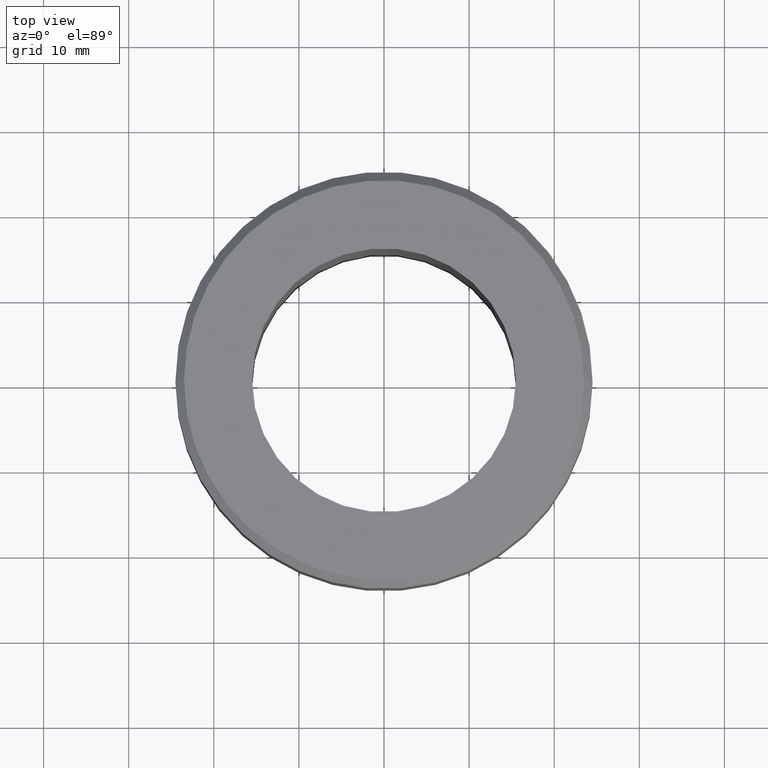
[diagram: clean part render]
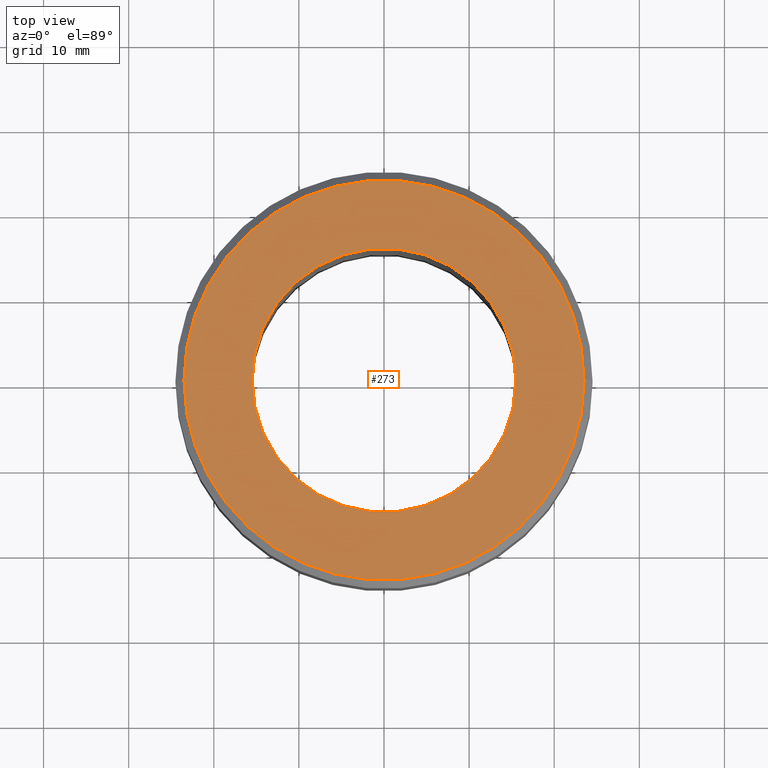
[diagram: same view with one face highlighted and labeled with its STEP entity id]
A machine part, top view. The second image highlights one B-rep face of the part: STEP entity #273.
In plain terms, the highlighted planar face has unit normal (0, -0, 1).
Its self-contained STEP definition (entity closure, byte-faithful):
#5 = CARTESIAN_POINT ( 'NONE',  ( 0.000000000000000000, 0.000000000000000000, 0.000000000000000000 ) ) ;
#46 = ORIENTED_EDGE ( 'NONE', *, *, #323, .T. ) ;
#67 = CARTESIAN_POINT ( 'NONE',  ( -23.50000000000000711, 0.000000000000000000, 0.000000000000000000 ) ) ;
#94 = FACE_BOUND ( 'NONE', #520, .T. ) ;
#98 = DIRECTION ( 'NONE',  ( 0.000000000000000000, -0.000000000000000000, 1.000000000000000000 ) ) ;
#105 = EDGE_CURVE ( 'NONE', #427, #154, #485, .T. ) ;
#124 = EDGE_CURVE ( 'NONE', #158, #391, #258, .T. ) ;
#127 = AXIS2_PLACEMENT_3D ( 'NONE', #181, #98, #509 ) ;
#129 = CARTESIAN_POINT ( 'NONE',  ( 23.50000000000000711, 2.939152317953648289E-15, 0.000000000000000000 ) ) ;
#134 = DIRECTION ( 'NONE',  ( -0.000000000000000000, -0.000000000000000000, 1.000000000000000000 ) ) ;
#154 = VERTEX_POINT ( 'NONE', #453 ) ;
#158 = VERTEX_POINT ( 'NONE', #129 ) ;
#172 = DIRECTION ( 'NONE',  ( 1.000000000000000000, 0.000000000000000000, 0.000000000000000000 ) ) ;
#173 = EDGE_LOOP ( 'NONE', ( #46, #272 ) ) ;
#181 = CARTESIAN_POINT ( 'NONE',  ( 0.000000000000000000, 0.000000000000000000, 0.000000000000000000 ) ) ;
#186 = CIRCLE ( 'NONE', #483, 23.50000000000000711 ) ;
#187 = FACE_OUTER_BOUND ( 'NONE', #173, .T. ) ;
#192 = DIRECTION ( 'NONE',  ( -0.000000000000000000, -0.000000000000000000, 1.000000000000000000 ) ) ;
#258 = CIRCLE ( 'NONE', #389, 23.50000000000000711 ) ;
#272 = ORIENTED_EDGE ( 'NONE', *, *, #124, .T. ) ;
#273 = ADVANCED_FACE ( 'NONE', ( #94, #187 ), #304, .T. ) ;
#292 = CARTESIAN_POINT ( 'NONE',  ( 0.000000000000000000, 0.000000000000000000, 0.000000000000000000 ) ) ;
#294 = DIRECTION ( 'NONE',  ( -0.000000000000000000, -0.000000000000000000, 1.000000000000000000 ) ) ;
#304 = PLANE ( 'NONE',  #127 ) ;
#320 = ORIENTED_EDGE ( 'NONE', *, *, #105, .F. ) ;
#323 = EDGE_CURVE ( 'NONE', #391, #158, #186, .T. ) ;
#326 = AXIS2_PLACEMENT_3D ( 'NONE', #5, #294, #172 ) ;
#341 = DIRECTION ( 'NONE',  ( -0.000000000000000000, -0.000000000000000000, 1.000000000000000000 ) ) ;
#354 = CARTESIAN_POINT ( 'NONE',  ( 0.000000000000000000, 0.000000000000000000, 0.000000000000000000 ) ) ;
#389 = AXIS2_PLACEMENT_3D ( 'NONE', #292, #134, #404 ) ;
#391 = VERTEX_POINT ( 'NONE', #67 ) ;
#404 = DIRECTION ( 'NONE',  ( 1.000000000000000000, 0.000000000000000000, 0.000000000000000000 ) ) ;
#417 = DIRECTION ( 'NONE',  ( 1.000000000000000000, 0.000000000000000000, 0.000000000000000000 ) ) ;
#427 = VERTEX_POINT ( 'NONE', #434 ) ;
#428 = AXIS2_PLACEMENT_3D ( 'NONE', #354, #192, #476 ) ;
#434 = CARTESIAN_POINT ( 'NONE',  ( 15.50000000000000000, 0.000000000000000000, 0.000000000000000000 ) ) ;
#450 = EDGE_CURVE ( 'NONE', #154, #427, #475, .T. ) ;
#453 = CARTESIAN_POINT ( 'NONE',  ( -15.50000000000000000, 1.898202538678397557E-15, 0.000000000000000000 ) ) ;
#471 = ORIENTED_EDGE ( 'NONE', *, *, #450, .F. ) ;
#475 = CIRCLE ( 'NONE', #428, 15.50000000000000000 ) ;
#476 = DIRECTION ( 'NONE',  ( 1.000000000000000000, 0.000000000000000000, 0.000000000000000000 ) ) ;
#483 = AXIS2_PLACEMENT_3D ( 'NONE', #504, #341, #417 ) ;
#485 = CIRCLE ( 'NONE', #326, 15.50000000000000000 ) ;
#504 = CARTESIAN_POINT ( 'NONE',  ( 0.000000000000000000, 0.000000000000000000, 0.000000000000000000 ) ) ;
#509 = DIRECTION ( 'NONE',  ( 1.000000000000000000, 0.000000000000000000, 0.000000000000000000 ) ) ;
#520 = EDGE_LOOP ( 'NONE', ( #320, #471 ) ) ;